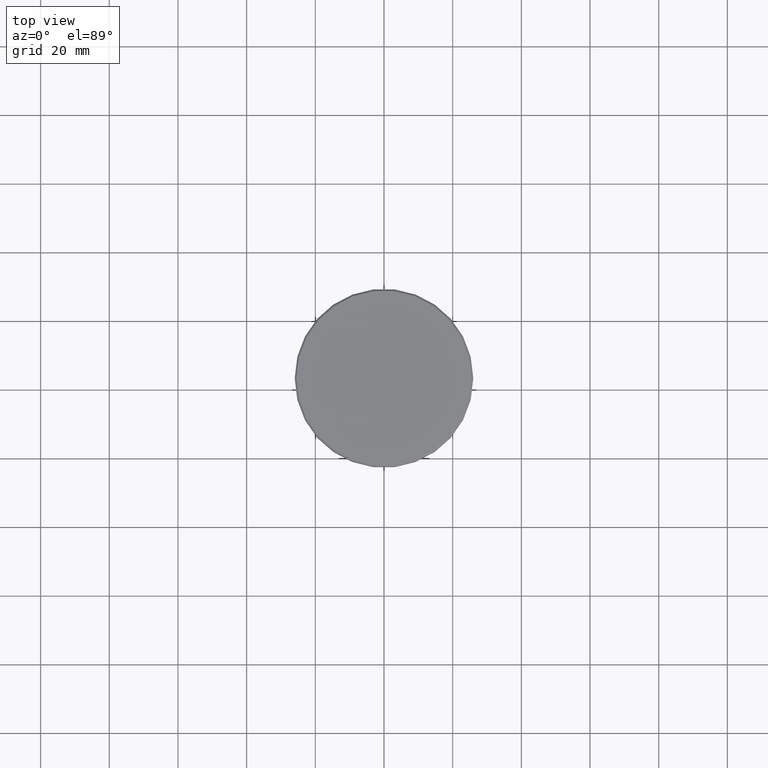
[diagram: clean part render]
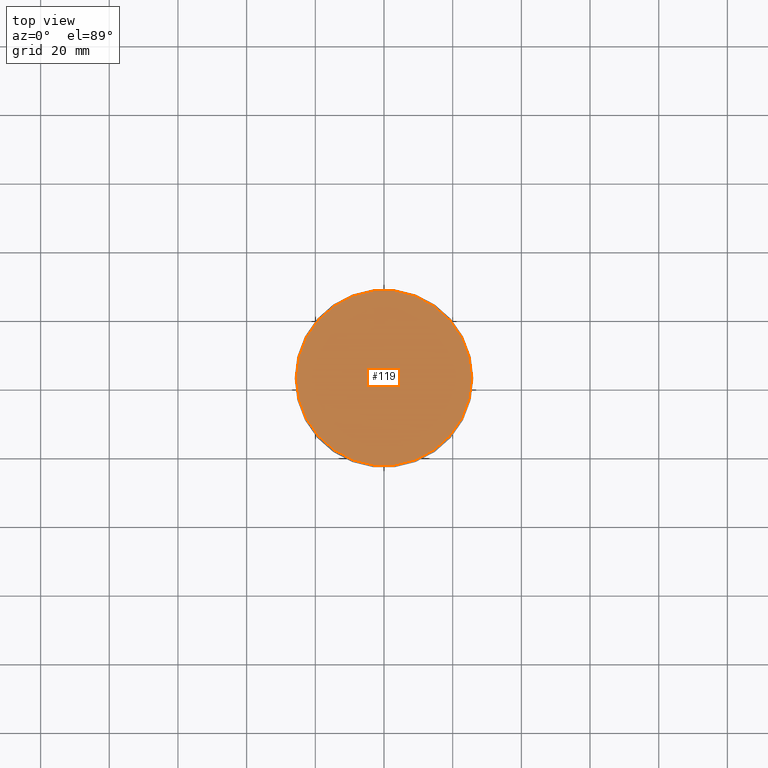
[diagram: same view with one face highlighted and labeled with its STEP entity id]
A machine part, top view. The second image highlights one B-rep face of the part: STEP entity #119.
In plain terms, the highlighted planar face has unit normal (0, -0, 1).
Its self-contained STEP definition (entity closure, byte-faithful):
#78 = CARTESIAN_POINT ( 'NONE',  ( 0.000000000000000000, 0.000000000000000000, 0.000000000000000000 ) ) ;
#91 = AXIS2_PLACEMENT_3D ( 'NONE', #1166, #806, #335 ) ;
#105 = EDGE_CURVE ( 'NONE', #477, #621, #343, .T. ) ;
#119 = ADVANCED_FACE ( 'NONE', ( #520 ), #1065, .T. ) ;
#128 = EDGE_CURVE ( 'NONE', #621, #477, #1134, .T. ) ;
#335 = DIRECTION ( 'NONE',  ( 1.000000000000000000, 0.000000000000000000, 0.000000000000000000 ) ) ;
#343 = CIRCLE ( 'NONE', #502, 25.49999999999997158 ) ;
#477 = VERTEX_POINT ( 'NONE', #785 ) ;
#502 = AXIS2_PLACEMENT_3D ( 'NONE', #615, #817, #706 ) ;
#520 = FACE_OUTER_BOUND ( 'NONE', #594, .T. ) ;
#594 = EDGE_LOOP ( 'NONE', ( #986, #996 ) ) ;
#615 = CARTESIAN_POINT ( 'NONE',  ( 0.000000000000000000, 0.000000000000000000, 0.000000000000000000 ) ) ;
#621 = VERTEX_POINT ( 'NONE', #705 ) ;
#705 = CARTESIAN_POINT ( 'NONE',  ( -25.49999999999997158, 0.000000000000000000, 0.000000000000000000 ) ) ;
#706 = DIRECTION ( 'NONE',  ( 1.000000000000000000, 0.000000000000000000, 0.000000000000000000 ) ) ;
#785 = CARTESIAN_POINT ( 'NONE',  ( 25.49999999999997158, 3.153465507804432826E-15, 0.000000000000000000 ) ) ;
#806 = DIRECTION ( 'NONE',  ( -0.000000000000000000, -0.000000000000000000, 1.000000000000000000 ) ) ;
#817 = DIRECTION ( 'NONE',  ( -0.000000000000000000, -0.000000000000000000, 1.000000000000000000 ) ) ;
#827 = AXIS2_PLACEMENT_3D ( 'NONE', #78, #1173, #1076 ) ;
#986 = ORIENTED_EDGE ( 'NONE', *, *, #128, .T. ) ;
#996 = ORIENTED_EDGE ( 'NONE', *, *, #105, .T. ) ;
#1065 = PLANE ( 'NONE',  #827 ) ;
#1076 = DIRECTION ( 'NONE',  ( 1.000000000000000000, 0.000000000000000000, 0.000000000000000000 ) ) ;
#1134 = CIRCLE ( 'NONE', #91, 25.49999999999997158 ) ;
#1166 = CARTESIAN_POINT ( 'NONE',  ( 0.000000000000000000, 0.000000000000000000, 0.000000000000000000 ) ) ;
#1173 = DIRECTION ( 'NONE',  ( 0.000000000000000000, -0.000000000000000000, 1.000000000000000000 ) ) ;